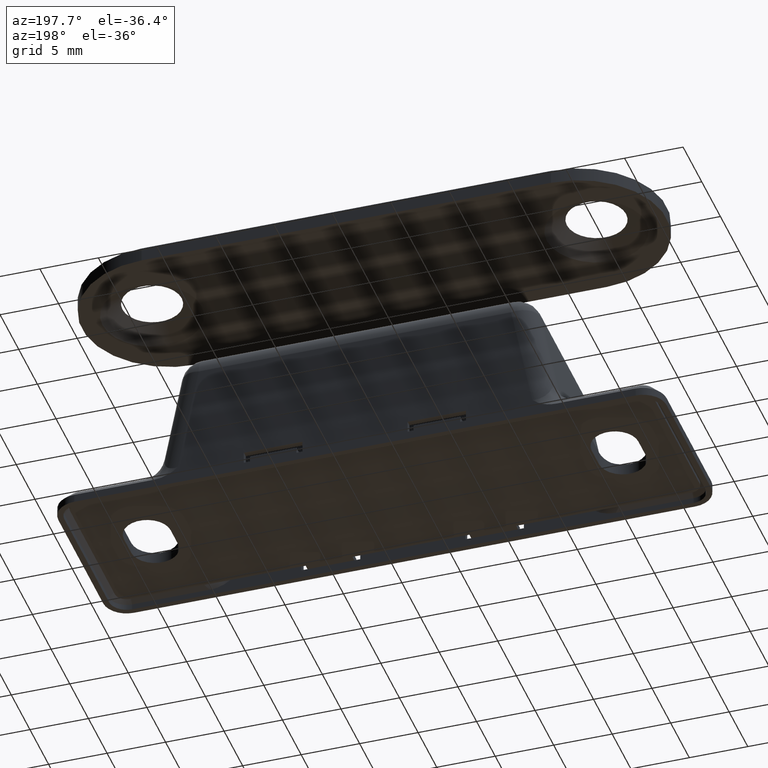
[diagram: clean part render]
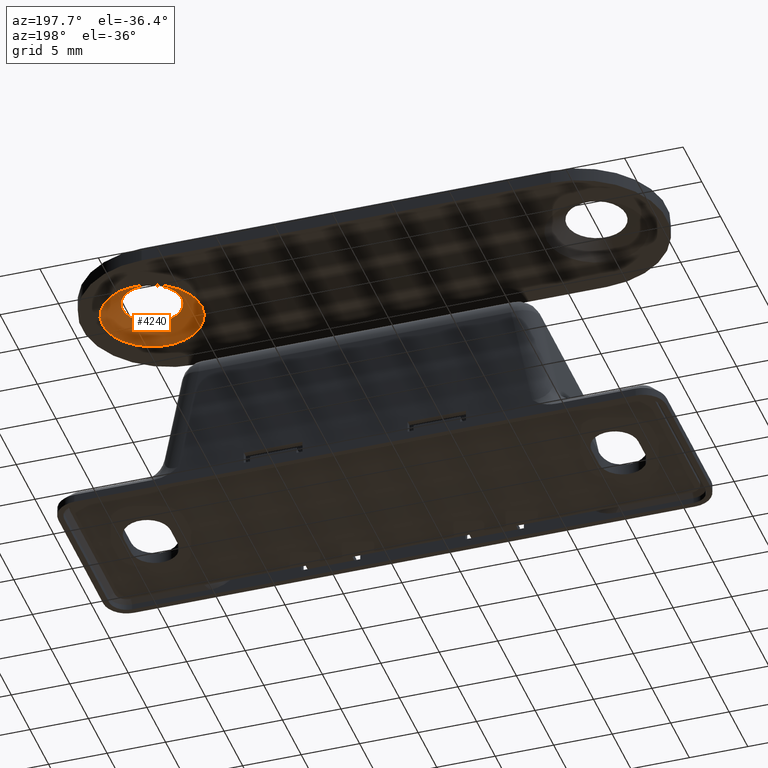
[diagram: same view with one face highlighted and labeled with its STEP entity id]
A machine part, auxiliary view. The second image highlights one B-rep face of the part: STEP entity #4240.
In plain terms, the highlighted conical surface has half-angle 55 deg.
Its self-contained STEP definition (entity closure, byte-faithful):
#50=CONICAL_SURFACE('',#4587,3.375,55.);
#157=FACE_BOUND('',#777,.T.);
#301=CIRCLE('',#4588,2.53622239190946);
#302=CIRCLE('',#4589,4.25);
#530=FACE_OUTER_BOUND('',#776,.T.);
#776=EDGE_LOOP('',(#3838));
#777=EDGE_LOOP('',(#3839));
#2046=VERTEX_POINT('',#7544);
#2047=VERTEX_POINT('',#7546);
#2646=EDGE_CURVE('',#2046,#2046,#301,.T.);
#2647=EDGE_CURVE('',#2047,#2047,#302,.T.);
#3838=ORIENTED_EDGE('',*,*,#2646,.F.);
#3839=ORIENTED_EDGE('',*,*,#2647,.F.);
#4240=ADVANCED_FACE('',(#530,#157),#50,.F.);
#4587=AXIS2_PLACEMENT_3D('',#7543,#5700,#5701);
#4588=AXIS2_PLACEMENT_3D('',#7545,#5702,#5703);
#4589=AXIS2_PLACEMENT_3D('',#7547,#5704,#5705);
#5700=DIRECTION('center_axis',(0.,0.,1.));
#5701=DIRECTION('ref_axis',(1.,0.,0.));
#5702=DIRECTION('center_axis',(0.,0.,1.));
#5703=DIRECTION('ref_axis',(1.,0.,0.));
#5704=DIRECTION('center_axis',(0.,0.,-1.));
#5705=DIRECTION('ref_axis',(1.,0.,0.));
#7543=CARTESIAN_POINT('Origin',(6.,0.,0.587318404066504));
#7544=CARTESIAN_POINT('',(3.46377760809054,-3.10587405583892E-16,0.));
#7545=CARTESIAN_POINT('Origin',(6.,0.,0.));
#7546=CARTESIAN_POINT('',(10.25,0.,1.2));
#7547=CARTESIAN_POINT('Origin',(6.,0.,1.2));